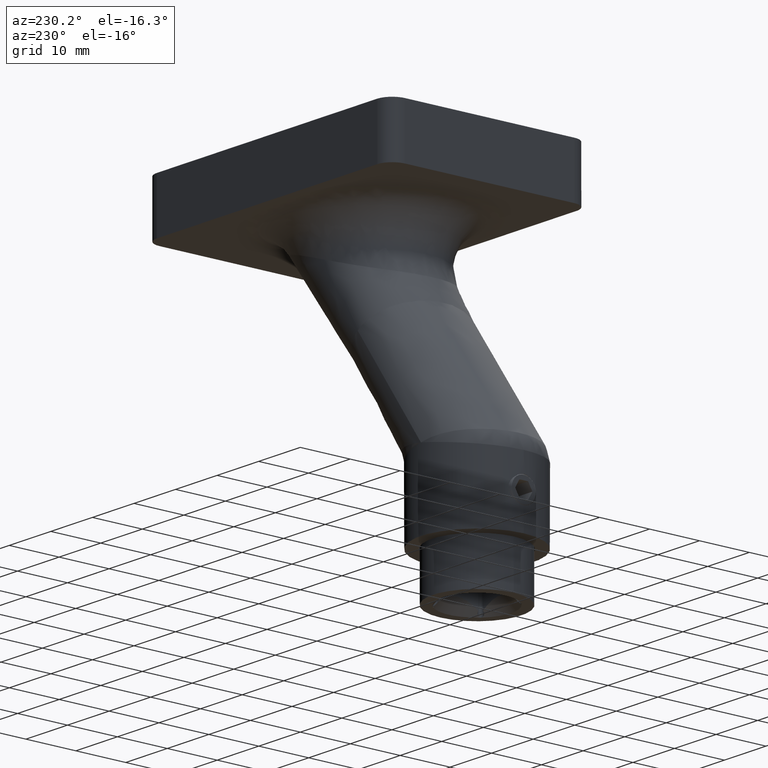
[diagram: clean part render]
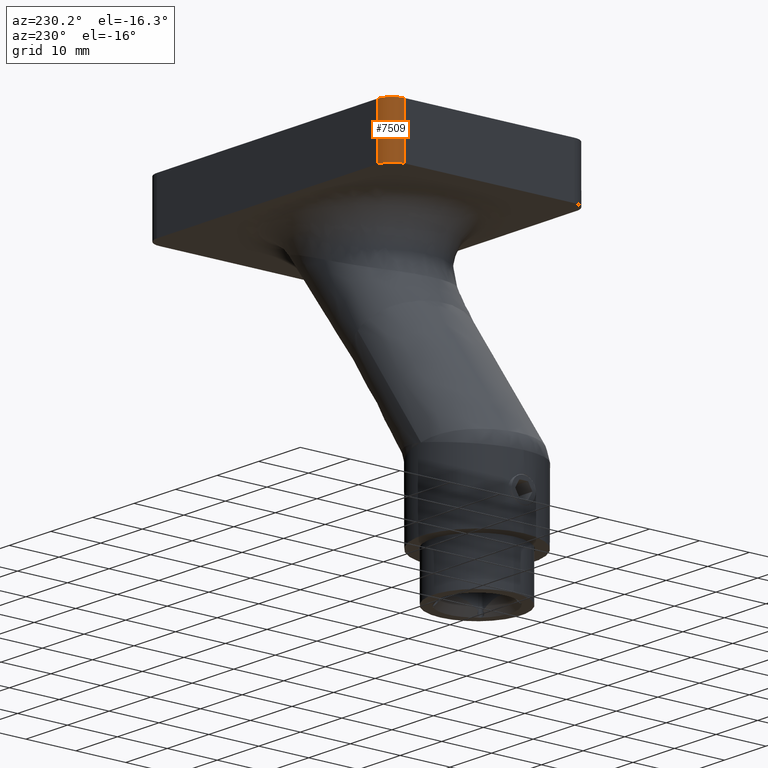
[diagram: same view with one face highlighted and labeled with its STEP entity id]
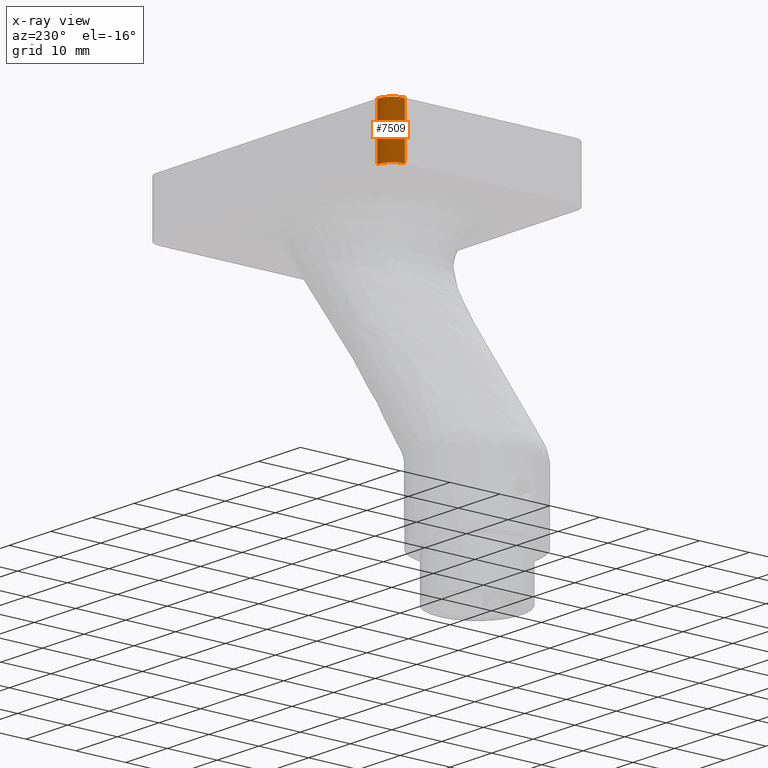
[diagram: x-ray of the same camera — body ghosted, the highlighted face saturated]
A machine part, auxiliary view. The second image highlights one B-rep face of the part: STEP entity #7509.
The next image is the same camera in x-ray: the body ghosted, the highlighted face saturated — about 0% of this face is hidden behind the body in this view.
In plain terms, the highlighted cylindrical surface (edge-blend (fillet) strip) has radius 3 mm, axis along (0, 0, -1).
Its self-contained STEP definition (entity closure, byte-faithful):
#51 = DIRECTION ( 'NONE',  ( 0.000000000000000000, -0.000000000000000000, -1.000000000000000000 ) ) ;
#753 = CARTESIAN_POINT ( 'NONE',  ( -29.10246379692707208, 18.50533751803812521, 10.49996642921880685 ) ) ;
#806 = CARTESIAN_POINT ( 'NONE',  ( -28.00184694928726969, 19.60438959727366992, 10.49997049328662513 ) ) ;
#958 = CARTESIAN_POINT ( 'NONE',  ( -29.49999999999999645, 17.00000000000000355, 0.000000000000000000 ) ) ;
#1084 = CIRCLE ( 'NONE', #7914, 2.999999999999999112 ) ;
#1598 = DIRECTION ( 'NONE',  ( -1.000000000000000000, 0.000000000000000000, 0.000000000000000000 ) ) ;
#1951 = CARTESIAN_POINT ( 'NONE',  ( -26.49999999999999645, 20.00000000000000355, 0.000000000000000000 ) ) ;
#1970 = CYLINDRICAL_SURFACE ( 'NONE', #5587, 2.999999999999999112 ) ;
#2096 = CARTESIAN_POINT ( 'NONE',  ( -28.88310988504068888, 18.83293375039869133, 10.50001724996376495 ) ) ;
#3023 = EDGE_CURVE ( 'NONE', #11543, #8975, #5511, .T. ) ;
#3972 = CARTESIAN_POINT ( 'NONE',  ( -26.50000000000000355, 20.00000000000000711, 10.50000000000000178 ) ) ;
#4537 = B_SPLINE_CURVE_WITH_KNOTS ( 'NONE', 3,
 ( #13148, #15776, #14838, #7932, #14655, #5042, #806, #16185, #7870, #6449, #2096, #753, #14715, #10630, #9273, #17663 ),
 .UNSPECIFIED., .F., .F.,
 ( 4, 2, 2, 2, 2, 2, 2, 4 ),
 ( 3.469446951953614189E-18, 0.0005858097322723964349, 0.001171619464544789400, 0.001757429196817182366, 0.002343238929089575331, 0.002929048661361968297, 0.003514858393634361262, 0.004686477858179147193 ),
 .UNSPECIFIED. ) ;
#5042 = CARTESIAN_POINT ( 'NONE',  ( -27.82960703193122498, 19.69643648202957564, 10.49998046006515651 ) ) ;
#5297 = CARTESIAN_POINT ( 'NONE',  ( -26.49999999999999645, 20.00000000000000355, 10.50000000000000000 ) ) ;
#5511 = LINE ( 'NONE', #5297, #7913 ) ;
#5587 = AXIS2_PLACEMENT_3D ( 'NONE', #7261, #17151, #1598 ) ;
#6068 = CARTESIAN_POINT ( 'NONE',  ( -29.49999999999999645, 17.00000000000000355, 10.50000000000000000 ) ) ;
#6221 = ORIENTED_EDGE ( 'NONE', *, *, #3023, .F. ) ;
#6449 = CARTESIAN_POINT ( 'NONE',  ( -28.75892362503193667, 18.98381568267265962, 10.50000102245785527 ) ) ;
#6515 = EDGE_CURVE ( 'NONE', #13121, #11543, #1084, .T. ) ;
#7261 = CARTESIAN_POINT ( 'NONE',  ( -26.49999999999999645, 17.00000000000000355, 10.50000000000000000 ) ) ;
#7509 = ADVANCED_FACE ( 'NONE', ( #16417 ), #1970, .T. ) ;
#7870 = CARTESIAN_POINT ( 'NONE',  ( -28.48220007190613146, 19.26034145240950934, 10.50000654062093552 ) ) ;
#7913 = VECTOR ( 'NONE', #12338, 1000.000000000000000 ) ;
#7914 = AXIS2_PLACEMENT_3D ( 'NONE', #15366, #51, #11161 ) ;
#7932 = CARTESIAN_POINT ( 'NONE',  ( -27.27605508220349861, 19.90446164749448599, 10.49997662532879517 ) ) ;
#8700 = EDGE_CURVE ( 'NONE', #13008, #13121, #12928, .T. ) ;
#8975 = VERTEX_POINT ( 'NONE', #3972 ) ;
#9080 = ORIENTED_EDGE ( 'NONE', *, *, #8700, .F. ) ;
#9273 = CARTESIAN_POINT ( 'NONE',  ( -29.50000000000004263, 17.39616272455422319, 10.49999999997656808 ) ) ;
#9303 = EDGE_CURVE ( 'NONE', #8975, #13008, #4537, .T. ) ;
#10630 = CARTESIAN_POINT ( 'NONE',  ( -29.42039411214240374, 17.78982374298998792, 10.49996766324890096 ) ) ;
#10741 = VECTOR ( 'NONE', #17207, 1000.000000000000000 ) ;
#11161 = DIRECTION ( 'NONE',  ( 1.000000000000000000, 0.000000000000000000, 0.000000000000000000 ) ) ;
#11543 = VERTEX_POINT ( 'NONE', #1951 ) ;
#12338 = DIRECTION ( 'NONE',  ( -0.000000000000000000, -0.000000000000000000, 1.000000000000000000 ) ) ;
#12892 = ORIENTED_EDGE ( 'NONE', *, *, #6515, .F. ) ;
#12928 = LINE ( 'NONE', #6068, #10741 ) ;
#13008 = VERTEX_POINT ( 'NONE', #16094 ) ;
#13121 = VERTEX_POINT ( 'NONE', #958 ) ;
#13148 = CARTESIAN_POINT ( 'NONE',  ( -26.50000000000000355, 20.00000000000000711, 10.50000000000000178 ) ) ;
#14655 = CARTESIAN_POINT ( 'NONE',  ( -27.46646368735224542, 19.84685308753551780, 10.49994745079014180 ) ) ;
#14715 = CARTESIAN_POINT ( 'NONE',  ( -29.19573360534961282, 18.33084603083732489, 10.49996005770880636 ) ) ;
#14838 = CARTESIAN_POINT ( 'NONE',  ( -26.89285455285760662, 19.98057448366574818, 10.49978705926241140 ) ) ;
#14996 = EDGE_LOOP ( 'NONE', ( #17630, #6221, #12892, #9080 ) ) ;
#15366 = CARTESIAN_POINT ( 'NONE',  ( -26.49999999999999645, 17.00000000000000355, 0.000000000000000000 ) ) ;
#15776 = CARTESIAN_POINT ( 'NONE',  ( -26.69808138404088993, 20.00000000000001066, 10.50000000000000355 ) ) ;
#16094 = CARTESIAN_POINT ( 'NONE',  ( -29.49999999999999645, 17.00000000000000355, 10.50000000000000000 ) ) ;
#16185 = CARTESIAN_POINT ( 'NONE',  ( -28.32783343985245494, 19.38692571095706185, 10.50001934571583284 ) ) ;
#16417 = FACE_OUTER_BOUND ( 'NONE', #14996, .T. ) ;
#17151 = DIRECTION ( 'NONE',  ( 0.000000000000000000, 0.000000000000000000, -1.000000000000000000 ) ) ;
#17207 = DIRECTION ( 'NONE',  ( 0.000000000000000000, 0.000000000000000000, -1.000000000000000000 ) ) ;
#17630 = ORIENTED_EDGE ( 'NONE', *, *, #9303, .F. ) ;
#17663 = CARTESIAN_POINT ( 'NONE',  ( -29.49999999999999645, 17.00000000000000355, 10.50000000000000000 ) ) ;